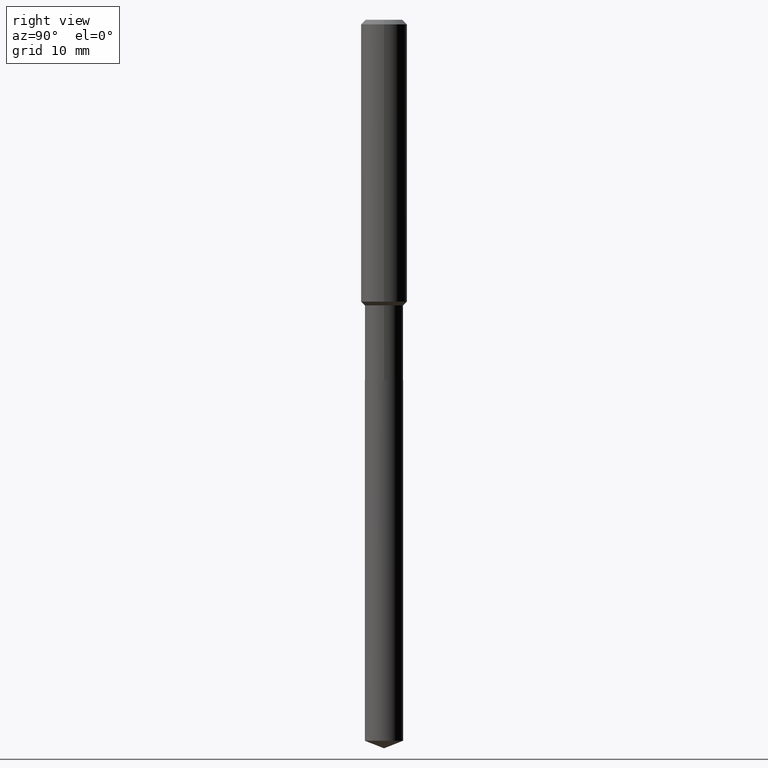
[diagram: clean part render]
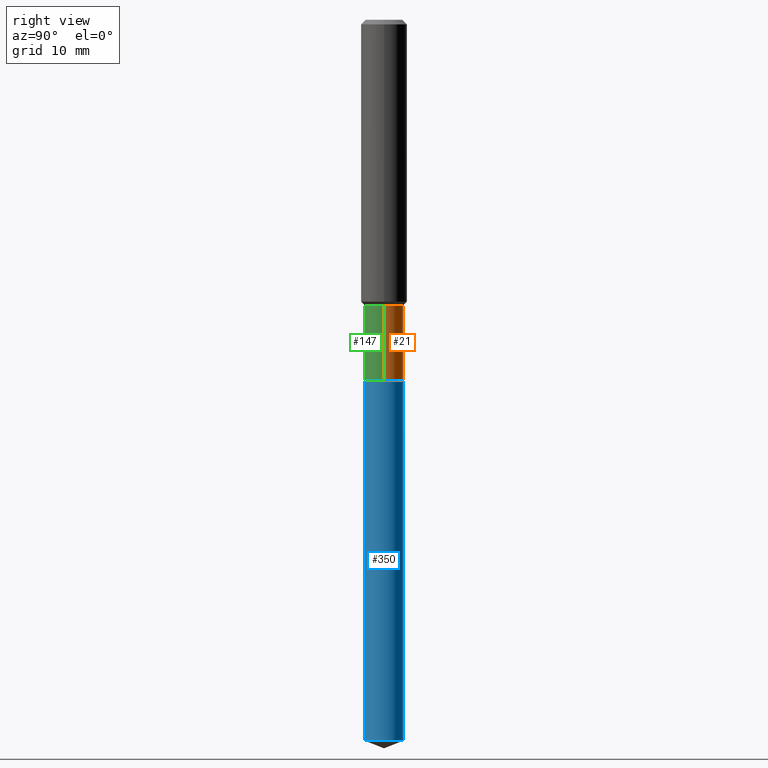
[diagram: same view with three faces highlighted in distinct colors, each labeled with its STEP entity id]
A machine part, right view with three faces highlighted in distinct colors.
Their STEP definitions:

[orange] entity #21 — the highlighted cylindrical surface (edge-blend (fillet) strip) has radius 2.5006 mm, axis along (-0, 0, 1).
#9 = EDGE_CURVE ( 'NONE', #81, #479, #367, .T. ) ;
#11 = CARTESIAN_POINT ( 'NONE',  ( 0.09844999999999998197, -6.874726756182128559E-16, 4.800596035771097813E-30 ) ) ;
#21 = ADVANCED_FACE ( 'NONE', ( #325 ), #483, .T. ) ;
#24 = ORIENTED_EDGE ( 'NONE', *, *, #405, .T. ) ;
#46 = VECTOR ( 'NONE', #129, 39.37007874015748143 ) ;
#55 = CARTESIAN_POINT ( 'NONE',  ( 4.523872744561885153E-29, -6.458891328725936072E-15, -1.849900000000000322 ) ) ;
#56 = CARTESIAN_POINT ( 'NONE',  ( -0.09845000000000002360, -5.090219606780827639E-15, -1.849900000000000322 ) ) ;
#59 = VERTEX_POINT ( 'NONE', #419 ) ;
#63 = EDGE_LOOP ( 'NONE', ( #155, #24, #365, #164 ) ) ;
#81 = VERTEX_POINT ( 'NONE', #425 ) ;
#87 = DIRECTION ( 'NONE',  ( -2.445468806185136597E-29, 3.491481338843145583E-15, 1.000000000000000000 ) ) ;
#97 = VECTOR ( 'NONE', #151, 39.37007874015748143 ) ;
#120 = CARTESIAN_POINT ( 'NONE',  ( 3.586524551151121675E-29, -5.120606531547357794E-15, -1.466600000000000126 ) ) ;
#129 = DIRECTION ( 'NONE',  ( -2.445468806185136877E-29, 3.491481338843145188E-15, 1.000000000000000000 ) ) ;
#130 = CARTESIAN_POINT ( 'NONE',  ( 0.000000000000000000, 0.000000000000000000, 0.000000000000000000 ) ) ;
#131 = AXIS2_PLACEMENT_3D ( 'NONE', #55, #198, #363 ) ;
#141 = DIRECTION ( 'NONE',  ( 1.000000000000000000, -6.982962677686266711E-15, 4.876176775795935793E-29 ) ) ;
#150 = CARTESIAN_POINT ( 'NONE',  ( 0.09844999999999994034, -5.808079207165570354E-15, -1.466600000000000126 ) ) ;
#151 = DIRECTION ( 'NONE',  ( -2.445468806185136877E-29, 3.491481338843145188E-15, 1.000000000000000000 ) ) ;
#155 = ORIENTED_EDGE ( 'NONE', *, *, #9, .T. ) ;
#164 = ORIENTED_EDGE ( 'NONE', *, *, #340, .F. ) ;
#188 = DIRECTION ( 'NONE',  ( 1.000000000000000000, -6.982962677686269866E-15, 0.000000000000000000 ) ) ;
#198 = DIRECTION ( 'NONE',  ( -2.445468806185136597E-29, 3.491481338843145583E-15, 1.000000000000000000 ) ) ;
#212 = CIRCLE ( 'NONE', #283, 0.09844999999999994034 ) ;
#236 = EDGE_CURVE ( 'NONE', #290, #59, #212, .T. ) ;
#281 = DIRECTION ( 'NONE',  ( -2.445468806185136597E-29, 3.491481338843145583E-15, 1.000000000000000000 ) ) ;
#283 = AXIS2_PLACEMENT_3D ( 'NONE', #120, #87, #188 ) ;
#285 = LINE ( 'NONE', #482, #46 ) ;
#290 = VERTEX_POINT ( 'NONE', #150 ) ;
#325 = FACE_OUTER_BOUND ( 'NONE', #63, .T. ) ;
#340 = EDGE_CURVE ( 'NONE', #81, #290, #353, .T. ) ;
#353 = LINE ( 'NONE', #11, #97 ) ;
#363 = DIRECTION ( 'NONE',  ( 1.000000000000000000, -6.982962677686265133E-15, 0.000000000000000000 ) ) ;
#365 = ORIENTED_EDGE ( 'NONE', *, *, #236, .F. ) ;
#367 = CIRCLE ( 'NONE', #131, 0.09845000000000000973 ) ;
#405 = EDGE_CURVE ( 'NONE', #479, #59, #285, .T. ) ;
#419 = CARTESIAN_POINT ( 'NONE',  ( -0.09844999999999994034, -5.090219606780828428E-15, -1.466600000000000126 ) ) ;
#425 = CARTESIAN_POINT ( 'NONE',  ( 0.09845000000000000973, -7.146364004344149421E-15, -1.849900000000000322 ) ) ;
#435 = AXIS2_PLACEMENT_3D ( 'NONE', #130, #281, #141 ) ;
#479 = VERTEX_POINT ( 'NONE', #56 ) ;
#482 = CARTESIAN_POINT ( 'NONE',  ( -0.09844999999999998197, 6.995293233558185049E-16, -4.842691596355953341E-30 ) ) ;
#483 = CYLINDRICAL_SURFACE ( 'NONE', #435, 0.09844999999999998197 ) ;

[blue] entity #350 — the highlighted cylindrical surface (edge-blend (fillet) strip) has radius 2.5006 mm, axis along (-0, 0, 1).
#8 = CARTESIAN_POINT ( 'NONE',  ( 6.995293233559089281E-16, 0.09844999999998707563, -3.701419513675709982 ) ) ;
#14 = ORIENTED_EDGE ( 'NONE', *, *, #375, .F. ) ;
#25 = DIRECTION ( 'NONE',  ( -6.982962677686265922E-15, -1.000000000000000000, 2.774858297271979165E-15 ) ) ;
#38 = LINE ( 'NONE', #426, #337 ) ;
#58 = DIRECTION ( 'NONE',  ( -6.982962677686265922E-15, -1.000000000000000000, 5.549716594543958330E-15 ) ) ;
#60 = EDGE_CURVE ( 'NONE', #134, #159, #38, .T. ) ;
#79 = AXIS2_PLACEMENT_3D ( 'NONE', #443, #330, #58 ) ;
#90 = CARTESIAN_POINT ( 'NONE',  ( -6.874726756181675950E-16, -0.09845000000000644902, -1.850400000000000045 ) ) ;
#109 = DIRECTION ( 'NONE',  ( -2.445480539169630025E-29, 3.491464536541551464E-15, 1.000000000000000000 ) ) ;
#117 = ORIENTED_EDGE ( 'NONE', *, *, #416, .T. ) ;
#132 = CIRCLE ( 'NONE', #79, 0.09844999999999999585 ) ;
#134 = VERTEX_POINT ( 'NONE', #8 ) ;
#135 = CARTESIAN_POINT ( 'NONE',  ( 4.525095478964977394E-29, -6.460637069395357576E-15, -1.850400000000000267 ) ) ;
#140 = AXIS2_PLACEMENT_3D ( 'NONE', #135, #408, #25 ) ;
#153 = CARTESIAN_POINT ( 'NONE',  ( 4.525095478964977394E-29, -6.460637069395357576E-15, -1.850400000000000267 ) ) ;
#159 = VERTEX_POINT ( 'NONE', #460 ) ;
#193 = EDGE_LOOP ( 'NONE', ( #117, #447, #14, #399 ) ) ;
#204 = CARTESIAN_POINT ( 'NONE',  ( -6.874726756181222355E-16, -0.09845000000001290219, -3.701419513675708650 ) ) ;
#209 = VERTEX_POINT ( 'NONE', #382 ) ;
#222 = CIRCLE ( 'NONE', #140, 0.09844999999999999585 ) ;
#224 = LINE ( 'NONE', #90, #427 ) ;
#263 = EDGE_CURVE ( 'NONE', #431, #209, #224, .T. ) ;
#271 = DIRECTION ( 'NONE',  ( -6.982962677686265922E-15, -1.000000000000000000, 2.774858297271979165E-15 ) ) ;
#311 = FACE_OUTER_BOUND ( 'NONE', #193, .T. ) ;
#330 = DIRECTION ( 'NONE',  ( -2.445480539169629745E-29, 3.491464536541551464E-15, 1.000000000000000000 ) ) ;
#337 = VECTOR ( 'NONE', #109, 39.37007874015748143 ) ;
#350 = ADVANCED_FACE ( 'NONE', ( #311 ), #470, .T. ) ;
#375 = EDGE_CURVE ( 'NONE', #209, #159, #222, .T. ) ;
#378 = AXIS2_PLACEMENT_3D ( 'NONE', #153, #472, #271 ) ;
#382 = CARTESIAN_POINT ( 'NONE',  ( -6.874726756181675950E-16, -0.09845000000000644902, -1.850400000000000045 ) ) ;
#399 = ORIENTED_EDGE ( 'NONE', *, *, #263, .F. ) ;
#408 = DIRECTION ( 'NONE',  ( -2.445480539169629745E-29, 3.491464536541551464E-15, 1.000000000000000000 ) ) ;
#416 = EDGE_CURVE ( 'NONE', #431, #134, #132, .T. ) ;
#426 = CARTESIAN_POINT ( 'NONE',  ( 6.995293233558637658E-16, 0.09844999999999354268, -1.850400000000000489 ) ) ;
#427 = VECTOR ( 'NONE', #474, 39.37007874015748143 ) ;
#431 = VERTEX_POINT ( 'NONE', #204 ) ;
#443 = CARTESIAN_POINT ( 'NONE',  ( 9.051727677282155315E-29, -1.292340605784048441E-14, -3.701419513675709094 ) ) ;
#447 = ORIENTED_EDGE ( 'NONE', *, *, #60, .T. ) ;
#460 = CARTESIAN_POINT ( 'NONE',  ( 6.995293233559093225E-16, 0.09844999999999354268, -1.850400000000000489 ) ) ;
#470 = CYLINDRICAL_SURFACE ( 'NONE', #378, 0.09844999999999999585 ) ;
#472 = DIRECTION ( 'NONE',  ( -2.445480539169629745E-29, 3.491464536541551464E-15, 1.000000000000000000 ) ) ;
#474 = DIRECTION ( 'NONE',  ( -2.445480539169630025E-29, 3.491464536541551464E-15, 1.000000000000000000 ) ) ;

[green] entity #147 — the highlighted cylindrical surface (edge-blend (fillet) strip) has radius 2.5006 mm, axis along (-0, 0, 1).
#10 = DIRECTION ( 'NONE',  ( 1.000000000000000000, -6.982962677686269866E-15, 0.000000000000000000 ) ) ;
#11 = CARTESIAN_POINT ( 'NONE',  ( 0.09844999999999998197, -6.874726756182128559E-16, 4.800596035771097813E-30 ) ) ;
#46 = VECTOR ( 'NONE', #129, 39.37007874015748143 ) ;
#50 = EDGE_LOOP ( 'NONE', ( #331, #327, #237, #323 ) ) ;
#56 = CARTESIAN_POINT ( 'NONE',  ( -0.09845000000000002360, -5.090219606780827639E-15, -1.849900000000000322 ) ) ;
#59 = VERTEX_POINT ( 'NONE', #419 ) ;
#76 = CYLINDRICAL_SURFACE ( 'NONE', #181, 0.09844999999999998197 ) ;
#81 = VERTEX_POINT ( 'NONE', #425 ) ;
#97 = VECTOR ( 'NONE', #151, 39.37007874015748143 ) ;
#111 = CIRCLE ( 'NONE', #230, 0.09845000000000000973 ) ;
#113 = DIRECTION ( 'NONE',  ( -2.445468806185136597E-29, 3.491481338843145583E-15, 1.000000000000000000 ) ) ;
#116 = DIRECTION ( 'NONE',  ( -2.445468806185136597E-29, 3.491481338843145583E-15, 1.000000000000000000 ) ) ;
#129 = DIRECTION ( 'NONE',  ( -2.445468806185136877E-29, 3.491481338843145188E-15, 1.000000000000000000 ) ) ;
#147 = ADVANCED_FACE ( 'NONE', ( #490 ), #76, .T. ) ;
#150 = CARTESIAN_POINT ( 'NONE',  ( 0.09844999999999994034, -5.808079207165570354E-15, -1.466600000000000126 ) ) ;
#151 = DIRECTION ( 'NONE',  ( -2.445468806185136877E-29, 3.491481338843145188E-15, 1.000000000000000000 ) ) ;
#181 = AXIS2_PLACEMENT_3D ( 'NONE', #341, #113, #218 ) ;
#218 = DIRECTION ( 'NONE',  ( 1.000000000000000000, -6.982962677686266711E-15, 4.876176775795935793E-29 ) ) ;
#230 = AXIS2_PLACEMENT_3D ( 'NONE', #364, #486, #233 ) ;
#233 = DIRECTION ( 'NONE',  ( 1.000000000000000000, -6.982962677686265133E-15, 0.000000000000000000 ) ) ;
#237 = ORIENTED_EDGE ( 'NONE', *, *, #340, .T. ) ;
#240 = CIRCLE ( 'NONE', #484, 0.09844999999999994034 ) ;
#285 = LINE ( 'NONE', #482, #46 ) ;
#287 = EDGE_CURVE ( 'NONE', #59, #290, #240, .T. ) ;
#290 = VERTEX_POINT ( 'NONE', #150 ) ;
#313 = CARTESIAN_POINT ( 'NONE',  ( 3.586524551151121675E-29, -5.120606531547357794E-15, -1.466600000000000126 ) ) ;
#323 = ORIENTED_EDGE ( 'NONE', *, *, #287, .F. ) ;
#327 = ORIENTED_EDGE ( 'NONE', *, *, #430, .T. ) ;
#331 = ORIENTED_EDGE ( 'NONE', *, *, #405, .F. ) ;
#340 = EDGE_CURVE ( 'NONE', #81, #290, #353, .T. ) ;
#341 = CARTESIAN_POINT ( 'NONE',  ( 0.000000000000000000, 0.000000000000000000, 0.000000000000000000 ) ) ;
#353 = LINE ( 'NONE', #11, #97 ) ;
#364 = CARTESIAN_POINT ( 'NONE',  ( 4.523872744561885153E-29, -6.458891328725936072E-15, -1.849900000000000322 ) ) ;
#405 = EDGE_CURVE ( 'NONE', #479, #59, #285, .T. ) ;
#419 = CARTESIAN_POINT ( 'NONE',  ( -0.09844999999999994034, -5.090219606780828428E-15, -1.466600000000000126 ) ) ;
#425 = CARTESIAN_POINT ( 'NONE',  ( 0.09845000000000000973, -7.146364004344149421E-15, -1.849900000000000322 ) ) ;
#430 = EDGE_CURVE ( 'NONE', #479, #81, #111, .T. ) ;
#479 = VERTEX_POINT ( 'NONE', #56 ) ;
#482 = CARTESIAN_POINT ( 'NONE',  ( -0.09844999999999998197, 6.995293233558185049E-16, -4.842691596355953341E-30 ) ) ;
#484 = AXIS2_PLACEMENT_3D ( 'NONE', #313, #116, #10 ) ;
#486 = DIRECTION ( 'NONE',  ( -2.445468806185136597E-29, 3.491481338843145583E-15, 1.000000000000000000 ) ) ;
#490 = FACE_OUTER_BOUND ( 'NONE', #50, .T. ) ;